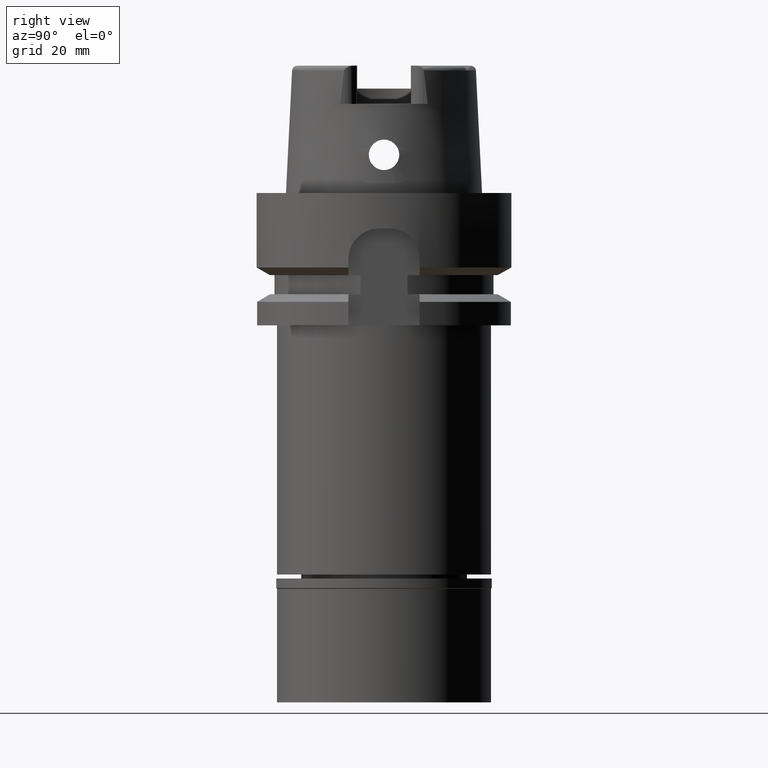
[diagram: clean part render]
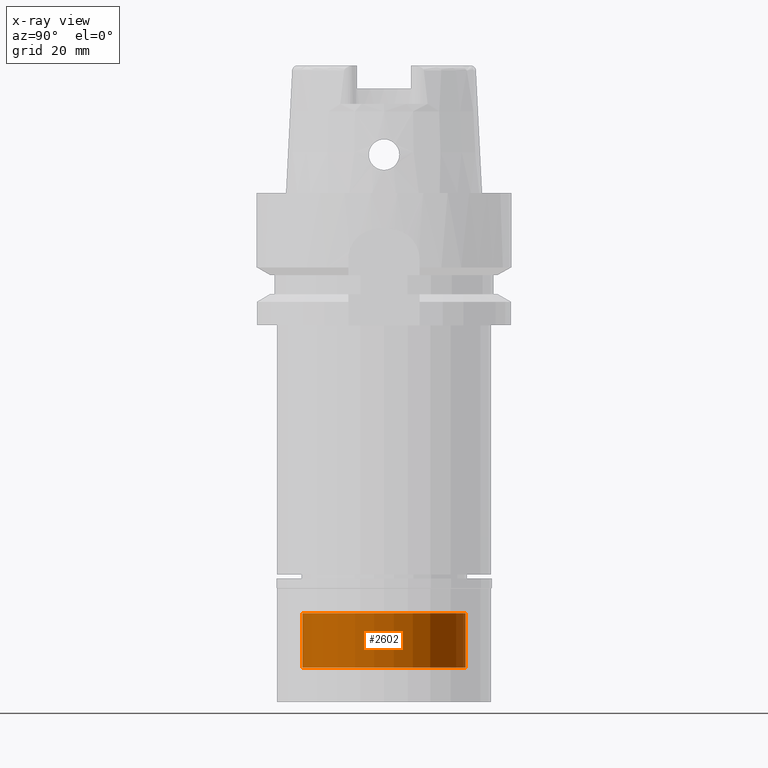
[diagram: x-ray — body ghosted, one internal face saturated and labeled with its STEP entity id]
A machine part, right view, then the same camera in x-ray: the body is ghosted and one INTERNAL B-rep face — a face not visible from any outside direction — is saturated and labeled: STEP entity #2602.
In plain terms, the highlighted cylindrical surface (partial cylindrical patch) has radius 16 mm, axis along (0, 0, -1).
Its self-contained STEP definition (entity closure, byte-faithful):
#298 = VERTEX_POINT ( 'NONE', #1538 ) ;
#640 = EDGE_CURVE ( 'NONE', #1285, #2564, #2788, .T. ) ;
#666 = DIRECTION ( 'NONE',  ( 0.0000000000000000000, 0.0000000000000000000, -1.000000000000000000 ) ) ;
#969 = CARTESIAN_POINT ( 'NONE',  ( 0.0000000000000000000, -16.00000000000000000, -17.50000000000000000 ) ) ;
#1033 = AXIS2_PLACEMENT_3D ( 'NONE', #3502, #666, #1828 ) ;
#1099 = AXIS2_PLACEMENT_3D ( 'NONE', #3830, #4138, #3308 ) ;
#1221 = CARTESIAN_POINT ( 'NONE',  ( 0.0000000000000000000, -16.00000000000000000, -17.50000000000000000 ) ) ;
#1260 = DIRECTION ( 'NONE',  ( 0.0000000000000000000, 0.0000000000000000000, 1.000000000000000000 ) ) ;
#1285 = VERTEX_POINT ( 'NONE', #1558 ) ;
#1360 = AXIS2_PLACEMENT_3D ( 'NONE', #3413, #1260, #4593 ) ;
#1361 = EDGE_CURVE ( 'NONE', #1477, #298, #5411, .T. ) ;
#1429 = LINE ( 'NONE', #969, #3012 ) ;
#1477 = VERTEX_POINT ( 'NONE', #2895 ) ;
#1538 = CARTESIAN_POINT ( 'NONE',  ( 0.0000000000000000000, 16.00000000000000000, -6.799999999999999822 ) ) ;
#1558 = CARTESIAN_POINT ( 'NONE',  ( 0.0000000000000000000, 16.00000000000000000, -17.50000000000000000 ) ) ;
#1828 = DIRECTION ( 'NONE',  ( 0.0000000000000000000, 1.000000000000000000, 0.0000000000000000000 ) ) ;
#1918 = LINE ( 'NONE', #4412, #4362 ) ;
#2004 = CYLINDRICAL_SURFACE ( 'NONE', #1099, 16.00000000000000000 ) ;
#2354 = DIRECTION ( 'NONE',  ( 0.0000000000000000000, 0.0000000000000000000, 1.000000000000000000 ) ) ;
#2564 = VERTEX_POINT ( 'NONE', #1221 ) ;
#2602 = ADVANCED_FACE ( 'NONE', ( #4116 ), #2004, .F. ) ;
#2621 = EDGE_LOOP ( 'NONE', ( #4363, #2954, #4431, #4200 ) ) ;
#2636 = DIRECTION ( 'NONE',  ( 0.0000000000000000000, 0.0000000000000000000, 1.000000000000000000 ) ) ;
#2788 = CIRCLE ( 'NONE', #1033, 16.00000000000000000 ) ;
#2895 = CARTESIAN_POINT ( 'NONE',  ( 0.0000000000000000000, -16.00000000000000000, -6.799999999999999822 ) ) ;
#2954 = ORIENTED_EDGE ( 'NONE', *, *, #4153, .T. ) ;
#3012 = VECTOR ( 'NONE', #2636, 1000.000000000000000 ) ;
#3071 = EDGE_CURVE ( 'NONE', #1285, #298, #1918, .T. ) ;
#3308 = DIRECTION ( 'NONE',  ( 0.0000000000000000000, -1.000000000000000000, 0.0000000000000000000 ) ) ;
#3413 = CARTESIAN_POINT ( 'NONE',  ( 0.0000000000000000000, 0.0000000000000000000, -6.799999999999999822 ) ) ;
#3502 = CARTESIAN_POINT ( 'NONE',  ( 0.0000000000000000000, 0.0000000000000000000, -17.50000000000000000 ) ) ;
#3830 = CARTESIAN_POINT ( 'NONE',  ( 0.0000000000000000000, 0.0000000000000000000, 0.0000000000000000000 ) ) ;
#4116 = FACE_OUTER_BOUND ( 'NONE', #2621, .T. ) ;
#4138 = DIRECTION ( 'NONE',  ( 0.0000000000000000000, 0.0000000000000000000, -1.000000000000000000 ) ) ;
#4153 = EDGE_CURVE ( 'NONE', #2564, #1477, #1429, .T. ) ;
#4200 = ORIENTED_EDGE ( 'NONE', *, *, #3071, .F. ) ;
#4362 = VECTOR ( 'NONE', #2354, 1000.000000000000000 ) ;
#4363 = ORIENTED_EDGE ( 'NONE', *, *, #640, .T. ) ;
#4412 = CARTESIAN_POINT ( 'NONE',  ( 0.0000000000000000000, 16.00000000000000000, -17.50000000000000000 ) ) ;
#4431 = ORIENTED_EDGE ( 'NONE', *, *, #1361, .T. ) ;
#4593 = DIRECTION ( 'NONE',  ( 0.0000000000000000000, -1.000000000000000000, 0.0000000000000000000 ) ) ;
#5411 = CIRCLE ( 'NONE', #1360, 16.00000000000000000 ) ;